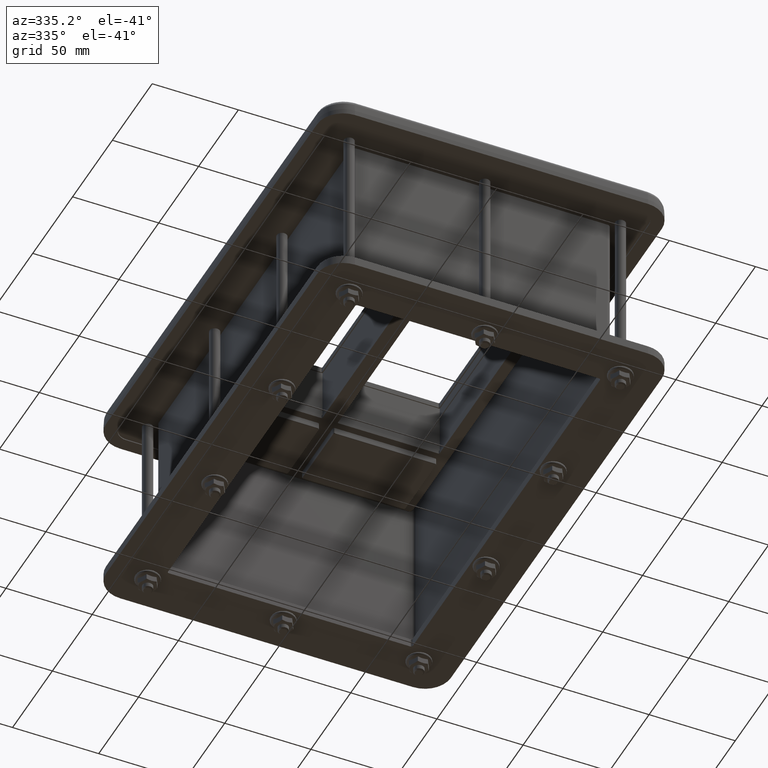
[diagram: clean part render]
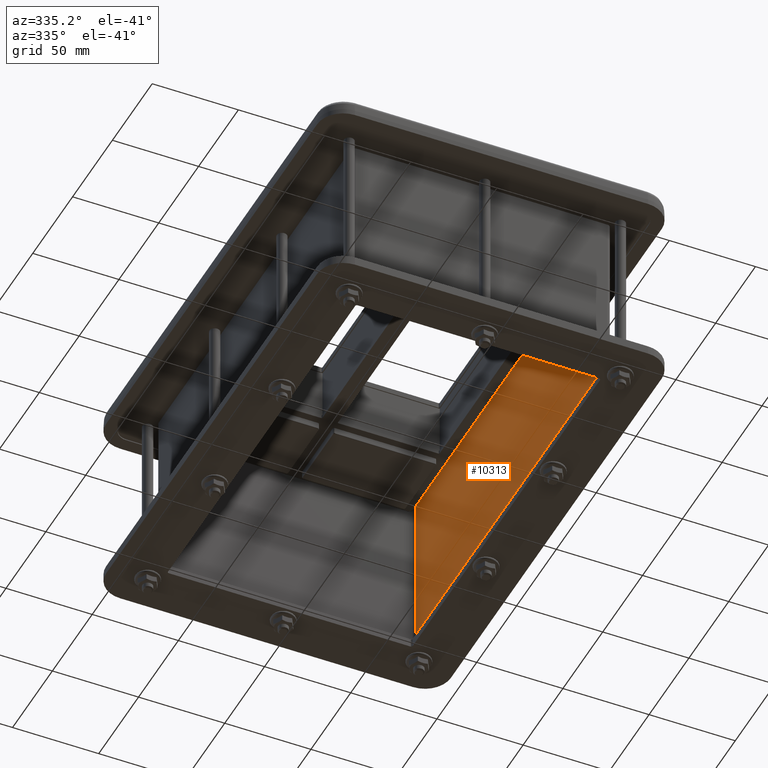
[diagram: same view with one face highlighted and labeled with its STEP entity id]
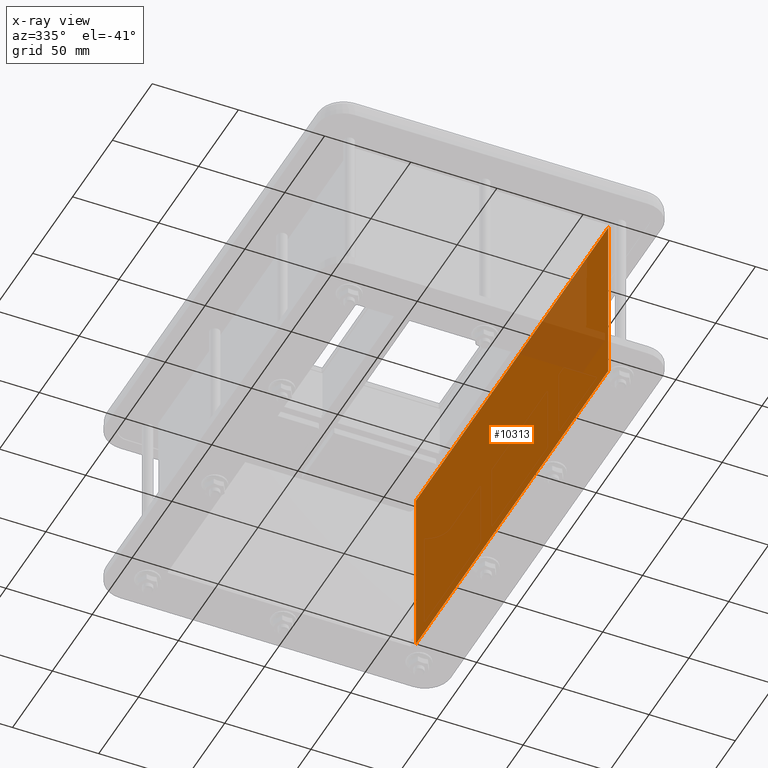
[diagram: x-ray of the same camera — body ghosted, the highlighted face saturated]
A machine part, auxiliary view. The second image highlights one B-rep face of the part: STEP entity #10313.
The next image is the same camera in x-ray: the body ghosted, the highlighted face saturated — about 16% of this face is hidden behind the body in this view.
In plain terms, the highlighted planar face has unit normal (-1, 0, 0).
Its self-contained STEP definition (entity closure, byte-faithful):
#779=PLANE('',#11146);
#1174=FACE_OUTER_BOUND('',#1809,.T.);
#1809=EDGE_LOOP('',(#7477,#7478,#7479,#7480));
#2351=LINE('',#16039,#3023);
#2366=LINE('',#16077,#3038);
#2367=LINE('',#16080,#3039);
#2368=LINE('',#16081,#3040);
#3023=VECTOR('',#12653,10.);
#3038=VECTOR('',#12702,10.);
#3039=VECTOR('',#12705,10.);
#3040=VECTOR('',#12706,10.);
#4338=VERTEX_POINT('',#16036);
#4339=VERTEX_POINT('',#16038);
#4345=VERTEX_POINT('',#16075);
#4346=VERTEX_POINT('',#16079);
#5478=EDGE_CURVE('',#4338,#4339,#2351,.T.);
#5497=EDGE_CURVE('',#4345,#4339,#2366,.T.);
#5498=EDGE_CURVE('',#4345,#4346,#2367,.T.);
#5499=EDGE_CURVE('',#4346,#4338,#2368,.T.);
#7477=ORIENTED_EDGE('',*,*,#5498,.F.);
#7478=ORIENTED_EDGE('',*,*,#5497,.T.);
#7479=ORIENTED_EDGE('',*,*,#5478,.F.);
#7480=ORIENTED_EDGE('',*,*,#5499,.F.);
#10313=ADVANCED_FACE('',(#1174),#779,.T.);
#11146=AXIS2_PLACEMENT_3D('',#16078,#12703,#12704);
#12653=DIRECTION('',(0.,1.,0.));
#12702=DIRECTION('',(0.,0.,-1.));
#12703=DIRECTION('center_axis',(-1.,0.,0.));
#12704=DIRECTION('ref_axis',(0.,1.,0.));
#12705=DIRECTION('',(0.,-1.,0.));
#12706=DIRECTION('',(0.,0.,-1.));
#16036=CARTESIAN_POINT('',(74.3,-120.712356905968,-119.2));
#16038=CARTESIAN_POINT('',(74.3,120.712356905968,-119.2));
#16039=CARTESIAN_POINT('',(74.3,-120.712356905968,-119.2));
#16075=CARTESIAN_POINT('',(74.3,120.712356905968,-19.2));
#16077=CARTESIAN_POINT('',(74.3,120.712356905968,-19.2));
#16078=CARTESIAN_POINT('Origin',(74.3,-120.712356905968,-19.2));
#16079=CARTESIAN_POINT('',(74.3,-120.712356905968,-19.2));
#16080=CARTESIAN_POINT('',(74.3,2.89382154701597,-19.2));
#16081=CARTESIAN_POINT('',(74.3,-120.712356905968,-19.2));